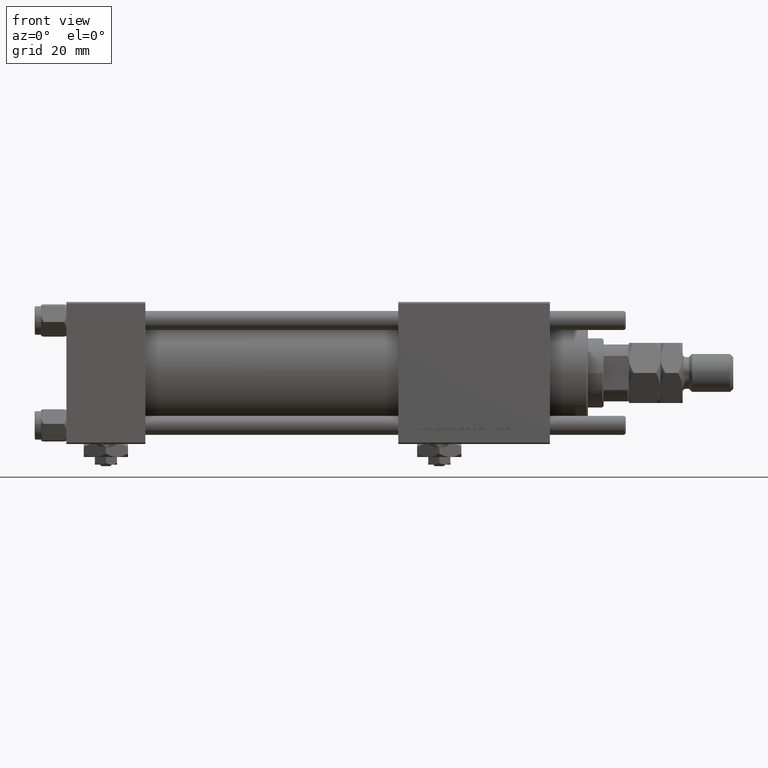
[diagram: clean part render]
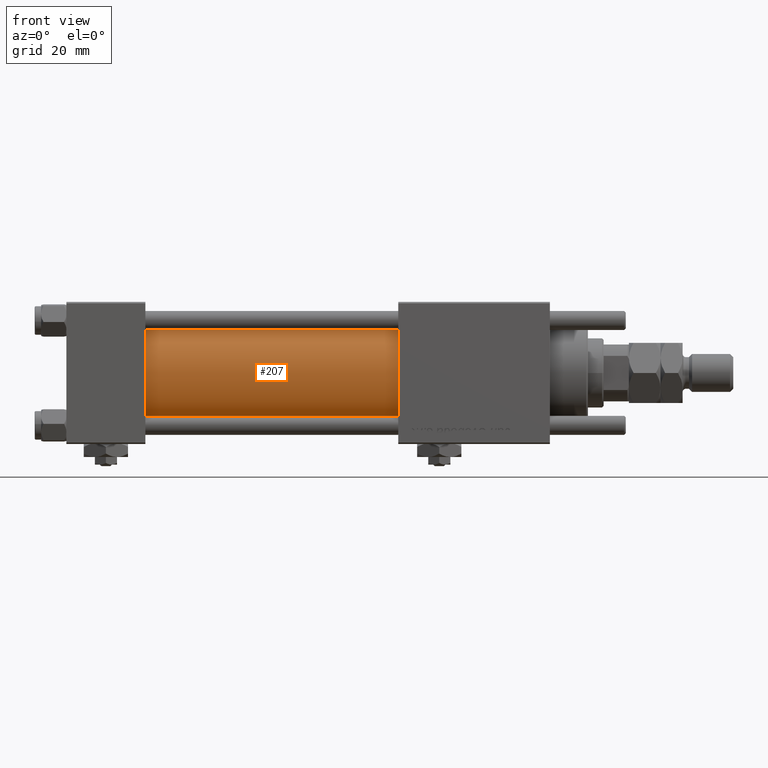
[diagram: same view with one face highlighted and labeled with its STEP entity id]
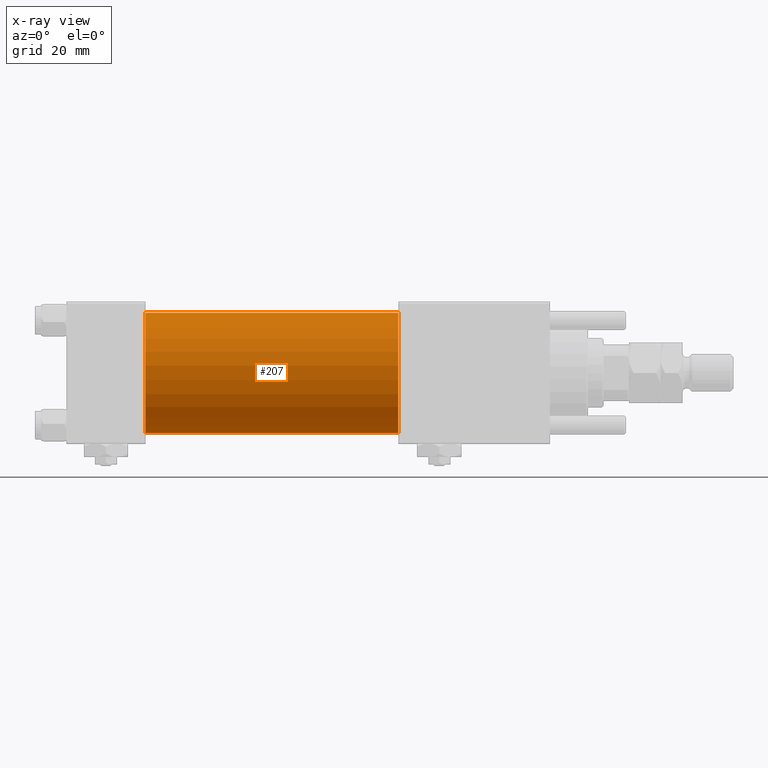
[diagram: x-ray of the same camera — body ghosted, the highlighted face saturated]
A machine part, front view. The second image highlights one B-rep face of the part: STEP entity #207.
The next image is the same camera in x-ray: the body ghosted, the highlighted face saturated — about 0% of this face is hidden behind the body in this view.
In plain terms, the highlighted cylindrical surface (partial cylindrical patch) has radius 19 mm, axis along (-1, -0, -0).
Its self-contained STEP definition (entity closure, byte-faithful):
#207 = ADVANCED_FACE ( 'NONE', ( #18320 ), #9161, .T. ) ;
#1152 = ORIENTED_EDGE ( 'NONE', *, *, #5677, .F. ) ;
#3870 = LINE ( 'NONE', #32285, #45908 ) ;
#4758 = CARTESIAN_POINT ( 'NONE',  ( 105.0000000000000142, -2.602085213965210642E-15, 0.000000000000000000 ) ) ;
#5677 = EDGE_CURVE ( 'NONE', #58408, #27931, #35045, .T. ) ;
#6364 = VERTEX_POINT ( 'NONE', #16465 ) ;
#8221 = ORIENTED_EDGE ( 'NONE', *, *, #10234, .T. ) ;
#8477 = ORIENTED_EDGE ( 'NONE', *, *, #49530, .F. ) ;
#9161 = CYLINDRICAL_SURFACE ( 'NONE', #40854, 19.00000000000000000 ) ;
#9514 = DIRECTION ( 'NONE',  ( 0.000000000000000000, 0.000000000000000000, 1.000000000000000000 ) ) ;
#10234 = EDGE_CURVE ( 'NONE', #58408, #6364, #3870, .T. ) ;
#14236 = DIRECTION ( 'NONE',  ( 1.000000000000000000, 0.000000000000000000, 0.000000000000000000 ) ) ;
#14350 = DIRECTION ( 'NONE',  ( 0.000000000000000000, 0.000000000000000000, 1.000000000000000000 ) ) ;
#16144 = VERTEX_POINT ( 'NONE', #20821 ) ;
#16465 = CARTESIAN_POINT ( 'NONE',  ( 24.99999999999999289, -2.602085213965210642E-15, 19.00000000000000000 ) ) ;
#18320 = FACE_OUTER_BOUND ( 'NONE', #41562, .T. ) ;
#20821 = CARTESIAN_POINT ( 'NONE',  ( 24.99999999999999289, -2.752562955852396712E-16, -19.00000000000000000 ) ) ;
#23397 = EDGE_CURVE ( 'NONE', #6364, #16144, #30600, .T. ) ;
#24739 = AXIS2_PLACEMENT_3D ( 'NONE', #32737, #51363, #9514 ) ;
#24886 = CARTESIAN_POINT ( 'NONE',  ( 105.0000000000000142, -2.752562955852396712E-16, -19.00000000000000000 ) ) ;
#26823 = CARTESIAN_POINT ( 'NONE',  ( 105.0000000000000142, -2.752562955852396712E-16, -19.00000000000000000 ) ) ;
#27931 = VERTEX_POINT ( 'NONE', #26823 ) ;
#28828 = CARTESIAN_POINT ( 'NONE',  ( 105.0000000000000142, -2.602085213965210642E-15, 19.00000000000000000 ) ) ;
#30600 = CIRCLE ( 'NONE', #24739, 19.00000000000000000 ) ;
#32285 = CARTESIAN_POINT ( 'NONE',  ( 105.0000000000000142, -2.602085213965210642E-15, 19.00000000000000000 ) ) ;
#32737 = CARTESIAN_POINT ( 'NONE',  ( 24.99999999999999289, -2.602085213965210642E-15, 0.000000000000000000 ) ) ;
#32991 = CARTESIAN_POINT ( 'NONE',  ( 105.0000000000000142, -2.602085213965210642E-15, 0.000000000000000000 ) ) ;
#35045 = CIRCLE ( 'NONE', #37979, 19.00000000000000000 ) ;
#37979 = AXIS2_PLACEMENT_3D ( 'NONE', #4758, #14236, #51498 ) ;
#38346 = DIRECTION ( 'NONE',  ( -1.000000000000000000, -0.000000000000000000, -0.000000000000000000 ) ) ;
#40114 = DIRECTION ( 'NONE',  ( -1.000000000000000000, -0.000000000000000000, -0.000000000000000000 ) ) ;
#40854 = AXIS2_PLACEMENT_3D ( 'NONE', #32991, #40114, #14350 ) ;
#41485 = ORIENTED_EDGE ( 'NONE', *, *, #23397, .T. ) ;
#41562 = EDGE_LOOP ( 'NONE', ( #8477, #1152, #8221, #41485 ) ) ;
#45908 = VECTOR ( 'NONE', #59767, 1000.000000000000000 ) ;
#49530 = EDGE_CURVE ( 'NONE', #27931, #16144, #52385, .T. ) ;
#51363 = DIRECTION ( 'NONE',  ( 1.000000000000000000, -0.000000000000000000, 0.000000000000000000 ) ) ;
#51498 = DIRECTION ( 'NONE',  ( 0.000000000000000000, 0.000000000000000000, -1.000000000000000000 ) ) ;
#52385 = LINE ( 'NONE', #24886, #53357 ) ;
#53357 = VECTOR ( 'NONE', #38346, 1000.000000000000000 ) ;
#58408 = VERTEX_POINT ( 'NONE', #28828 ) ;
#59767 = DIRECTION ( 'NONE',  ( -1.000000000000000000, -0.000000000000000000, -0.000000000000000000 ) ) ;